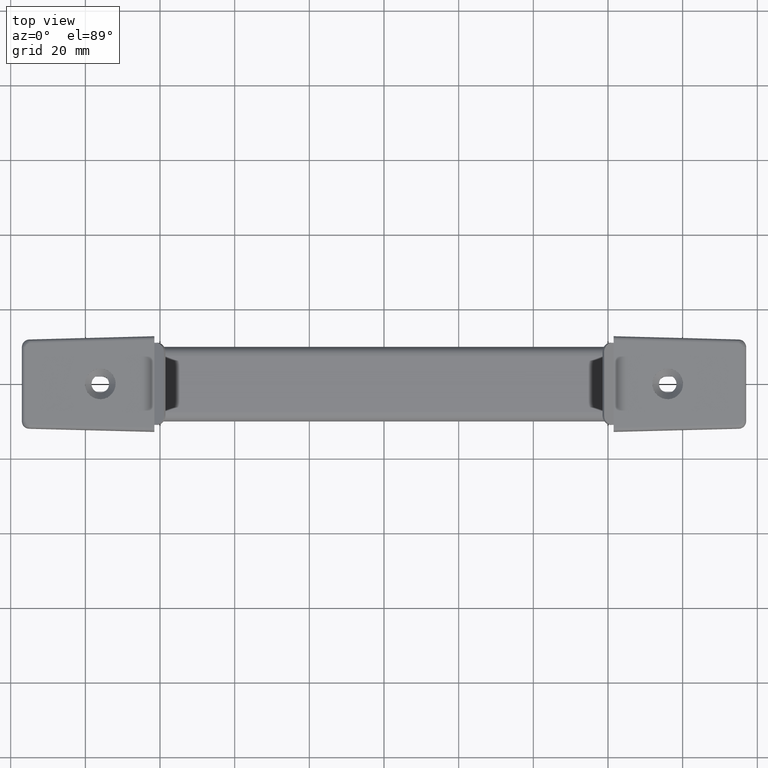
[diagram: clean part render]
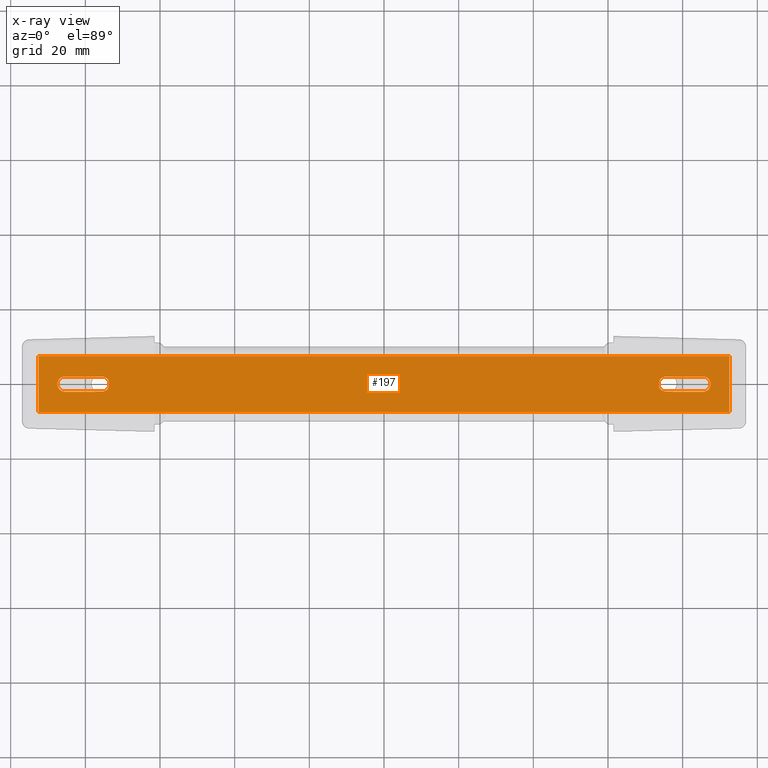
[diagram: x-ray — body ghosted, one internal face saturated and labeled with its STEP entity id]
A machine part, top view, then the same camera in x-ray: the body is ghosted and one INTERNAL B-rep face — a face not visible from any outside direction — is saturated and labeled: STEP entity #197.
In plain terms, the highlighted planar face has unit normal (0, 0, 1).
Its self-contained STEP definition (entity closure, byte-faithful):
#197=ADVANCED_FACE('',(#629,#630,#631),#628,.F.);
#628=PLANE('',#1320);
#629=FACE_OUTER_BOUND('',#1321,.T.);
#630=FACE_BOUND('',#1322,.T.);
#631=FACE_BOUND('',#1323,.T.);
#1317=CARTESIAN_POINT('',(-1.02500000000E+02,9.00000000000E+00,2.25000000000E+00));
#1318=DIRECTION('',(0.00000000000E+00,5.78241158659E-17,1.00000000000E+00));
#1319=DIRECTION('',(0.00000000000E+00,-1.00000000000E+00,5.78241158659E-17));
#1320=AXIS2_PLACEMENT_3D('',#1317,#1318,#1319);
#1321=EDGE_LOOP('',(#1716,#1717,#1718,#1719));
#1322=EDGE_LOOP('',(#1720,#1721,#1722,#1723));
#1323=EDGE_LOOP('',(#1724,#1725,#1726,#1727));
#1716=ORIENTED_EDGE('',*,*,#2025,.T.);
#1717=ORIENTED_EDGE('',*,*,#2026,.F.);
#1718=ORIENTED_EDGE('',*,*,#2027,.F.);
#1719=ORIENTED_EDGE('',*,*,#2022,.T.);
#1720=ORIENTED_EDGE('',*,*,#2028,.F.);
#1721=ORIENTED_EDGE('',*,*,#2029,.F.);
#1722=ORIENTED_EDGE('',*,*,#2030,.F.);
#1723=ORIENTED_EDGE('',*,*,#2031,.F.);
#1724=ORIENTED_EDGE('',*,*,#2032,.F.);
#1725=ORIENTED_EDGE('',*,*,#2033,.F.);
#1726=ORIENTED_EDGE('',*,*,#2034,.F.);
#1727=ORIENTED_EDGE('',*,*,#2035,.F.);
#2022=EDGE_CURVE('',#2752,#2745,#2753,.T.);
#2025=EDGE_CURVE('',#2745,#2772,#2773,.T.);
#2026=EDGE_CURVE('',#2779,#2772,#2780,.T.);
#2027=EDGE_CURVE('',#2752,#2779,#2786,.T.);
#2028=EDGE_CURVE('',#2792,#2793,#2794,.T.);
#2029=EDGE_CURVE('',#2800,#2792,#2801,.T.);
#2030=EDGE_CURVE('',#2807,#2800,#2808,.T.);
#2031=EDGE_CURVE('',#2793,#2807,#2814,.T.);
#2032=EDGE_CURVE('',#2820,#2821,#2822,.T.);
#2033=EDGE_CURVE('',#2828,#2820,#2829,.T.);
#2034=EDGE_CURVE('',#2835,#2828,#2836,.T.);
#2035=EDGE_CURVE('',#2821,#2835,#2842,.T.);
#2745=VERTEX_POINT('',#3814);
#2752=VERTEX_POINT('',#3818);
#2753=LINE('',#3819,#3820);
#2772=VERTEX_POINT('',#3829);
#2773=LINE('',#3830,#3831);
#2779=VERTEX_POINT('',#3833);
#2780=LINE('',#3834,#3835);
#2786=LINE('',#3837,#3838);
#2792=VERTEX_POINT('',#3840);
#2793=VERTEX_POINT('',#3841);
#2794=LINE('',#3842,#3843);
#2800=VERTEX_POINT('',#3845);
#2801=CIRCLE('',#3849,2.05000000000E+00);
#2807=VERTEX_POINT('',#3850);
#2808=LINE('',#3851,#3852);
#2814=CIRCLE('',#3857,2.05000000000E+00);
#2820=VERTEX_POINT('',#3858);
#2821=VERTEX_POINT('',#3859);
#2822=LINE('',#3860,#3861);
#2828=VERTEX_POINT('',#3863);
#2829=CIRCLE('',#3867,2.05000000000E+00);
#2835=VERTEX_POINT('',#3868);
#2836=LINE('',#3869,#3870);
#2842=CIRCLE('',#3875,2.05000000000E+00);
#3814=CARTESIAN_POINT('',(9.25000000000E+01,7.50000000000E+00,2.25000000000E+00));
#3818=CARTESIAN_POINT('',(-9.25000000000E+01,7.50000000000E+00,2.25000000000E+00));
#3819=CARTESIAN_POINT('',(-9.25000000000E+01,7.50000000000E+00,2.25000000000E+00));
#3820=VECTOR('',#3821,1.85000000000E+02);
#3821=DIRECTION('',(1.00000000000E+00,0.00000000000E+00,0.00000000000E+00));
#3829=CARTESIAN_POINT('',(9.25000000000E+01,-7.50000000000E+00,2.25000000000E+00));
#3830=CARTESIAN_POINT('',(9.25000000000E+01,7.50000000000E+00,2.25000000000E+00));
#3831=VECTOR('',#3832,1.50000000000E+01);
#3832=DIRECTION('',(0.00000000000E+00,-1.00000000000E+00,5.92118946467E-17));
#3833=CARTESIAN_POINT('',(-9.25000000000E+01,-7.50000000000E+00,2.25000000000E+00));
#3834=CARTESIAN_POINT('',(-9.25000000000E+01,-7.50000000000E+00,2.25000000000E+00));
#3835=VECTOR('',#3836,1.85000000000E+02);
#3836=DIRECTION('',(1.00000000000E+00,0.00000000000E+00,0.00000000000E+00));
#3837=CARTESIAN_POINT('',(-9.25000000000E+01,7.50000000000E+00,2.25000000000E+00));
#3838=VECTOR('',#3839,1.50000000000E+01);
#3839=DIRECTION('',(0.00000000000E+00,-1.00000000000E+00,5.92118946467E-17));
#3840=CARTESIAN_POINT('',(-7.55504000000E+01,-2.05000000000E+00,2.25000000000E+00));
#3841=CARTESIAN_POINT('',(-8.54504000000E+01,-2.05000000000E+00,2.25000000000E+00));
#3842=CARTESIAN_POINT('',(-7.55504000000E+01,-2.05000000000E+00,2.25000000000E+00));
#3843=VECTOR('',#3844,9.90000000000E+00);
#3844=DIRECTION('',(-1.00000000000E+00,0.00000000000E+00,0.00000000000E+00));
#3845=CARTESIAN_POINT('',(-7.55504000000E+01,2.05000000000E+00,2.25000000000E+00));
#3846=CARTESIAN_POINT('',(-7.55504000000E+01,0.00000000000E+00,2.25000000000E+00));
#3847=DIRECTION('',(0.00000000000E+00,0.00000000000E+00,-1.00000000000E+00));
#3848=DIRECTION('',(-1.00000000000E+00,-0.00000000000E+00,-0.00000000000E+00));
#3849=AXIS2_PLACEMENT_3D('',#3846,#3847,#3848);
#3850=CARTESIAN_POINT('',(-8.54504000000E+01,2.05000000000E+00,2.25000000000E+00));
#3851=CARTESIAN_POINT('',(-8.54504000000E+01,2.05000000000E+00,2.25000000000E+00));
#3852=VECTOR('',#3853,9.90000000000E+00);
#3853=DIRECTION('',(1.00000000000E+00,0.00000000000E+00,0.00000000000E+00));
#3854=CARTESIAN_POINT('',(-8.54504000000E+01,0.00000000000E+00,2.25000000000E+00));
#3855=DIRECTION('',(0.00000000000E+00,0.00000000000E+00,-1.00000000000E+00));
#3856=DIRECTION('',(1.83690953073E-16,1.00000000000E+00,0.00000000000E+00));
#3857=AXIS2_PLACEMENT_3D('',#3854,#3855,#3856);
#3858=CARTESIAN_POINT('',(7.55500000000E+01,2.05000000000E+00,2.25000000000E+00));
#3859=CARTESIAN_POINT('',(8.54500000000E+01,2.05000000000E+00,2.25000000000E+00));
#3860=CARTESIAN_POINT('',(7.55500000000E+01,2.05000000000E+00,2.25000000000E+00));
#3861=VECTOR('',#3862,9.90000000000E+00);
#3862=DIRECTION('',(1.00000000000E+00,0.00000000000E+00,0.00000000000E+00));
#3863=CARTESIAN_POINT('',(7.55500000000E+01,-2.05000000000E+00,2.25000000000E+00));
#3864=CARTESIAN_POINT('',(7.55500000000E+01,0.00000000000E+00,2.25000000000E+00));
#3865=DIRECTION('',(0.00000000000E+00,0.00000000000E+00,-1.00000000000E+00));
#3866=DIRECTION('',(1.83690953073E-16,1.00000000000E+00,0.00000000000E+00));
#3867=AXIS2_PLACEMENT_3D('',#3864,#3865,#3866);
#3868=CARTESIAN_POINT('',(8.54500000000E+01,-2.05000000000E+00,2.25000000000E+00));
#3869=CARTESIAN_POINT('',(8.54500000000E+01,-2.05000000000E+00,2.25000000000E+00));
#3870=VECTOR('',#3871,9.90000000000E+00);
#3871=DIRECTION('',(-1.00000000000E+00,0.00000000000E+00,0.00000000000E+00));
#3872=CARTESIAN_POINT('',(8.54500000000E+01,0.00000000000E+00,2.25000000000E+00));
#3873=DIRECTION('',(0.00000000000E+00,0.00000000000E+00,-1.00000000000E+00));
#3874=DIRECTION('',(-1.00000000000E+00,-0.00000000000E+00,-0.00000000000E+00));
#3875=AXIS2_PLACEMENT_3D('',#3872,#3873,#3874);